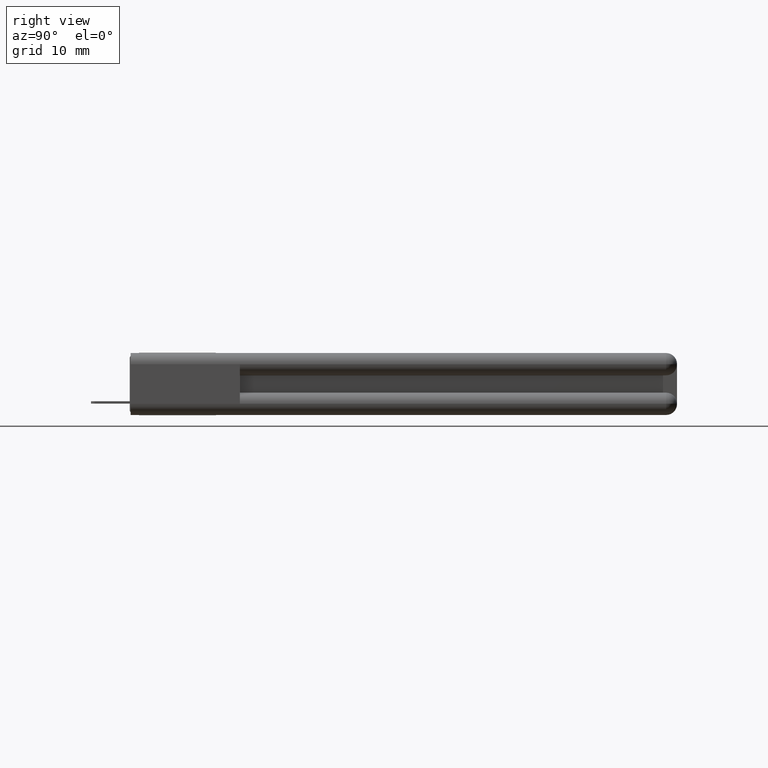
[diagram: clean part render]
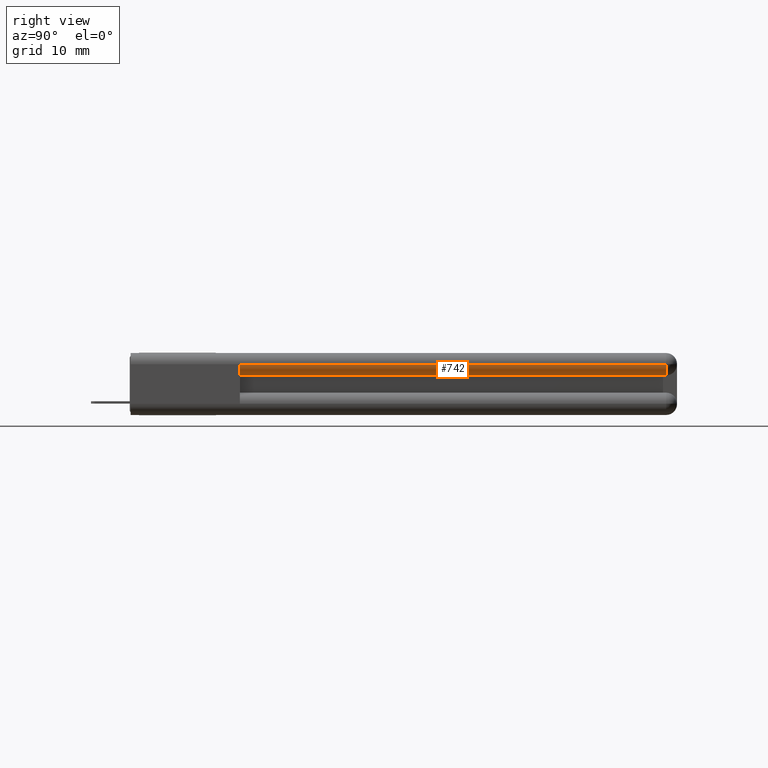
[diagram: same view with one face highlighted and labeled with its STEP entity id]
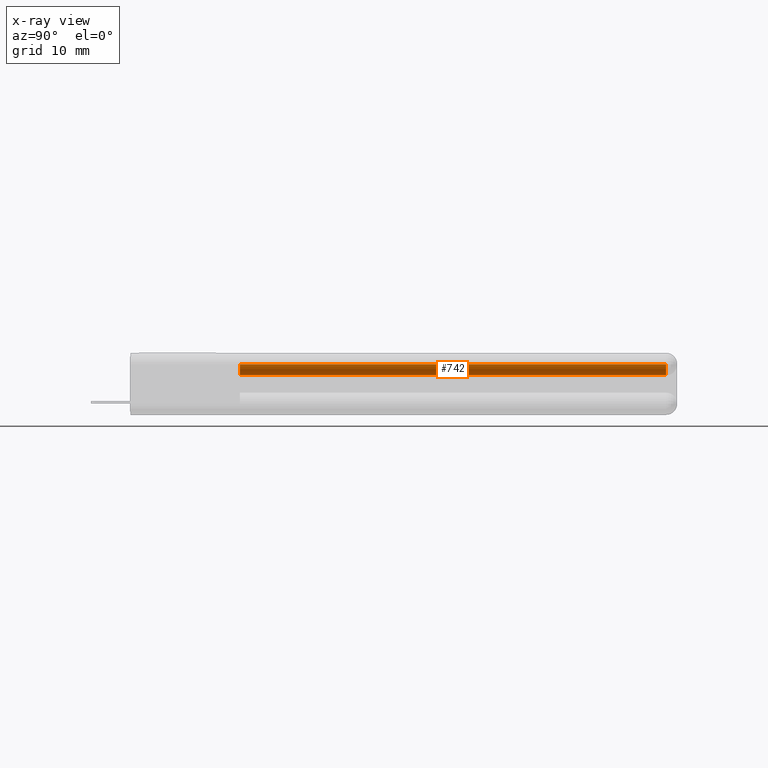
[diagram: x-ray of the same camera — body ghosted, the highlighted face saturated]
A machine part, right view. The second image highlights one B-rep face of the part: STEP entity #742.
The next image is the same camera in x-ray: the body ghosted, the highlighted face saturated — about 0% of this face is hidden behind the body in this view.
In plain terms, the highlighted cylindrical surface (edge-blend (fillet) strip) has radius 1.5621 mm, axis along (-0, 1, 0).
Its self-contained STEP definition (entity closure, byte-faithful):
#10 = DIRECTION ( 'NONE',  ( -7.120336040201873200E-016, -1.000000000000000000, 2.334284690065040000E-016 ) ) ;
#444 = CARTESIAN_POINT ( 'NONE',  ( 0.06150000000000015200, 0.6000000000000002000, -0.2790000000000015800 ) ) ;
#450 = EDGE_CURVE ( 'NONE', #1896, #2464, #8077, .T. ) ;
#473 = CARTESIAN_POINT ( 'NONE',  ( 0.06149796744608740400, 0.6000000000000002000, -0.2175000000000007500 ) ) ;
#695 = VECTOR ( 'NONE', #4792, 39.37007874015748100 ) ;
#742 = ADVANCED_FACE ( 'NONE', ( #7123 ), #12300, .T. ) ;
#1029 = CARTESIAN_POINT ( 'NONE',  ( 0.06150000000000370400, 2.940000000000007100, -0.2790000000000020200 ) ) ;
#1299 = VECTOR ( 'NONE', #1614, 39.37007874015748100 ) ;
#1614 = DIRECTION ( 'NONE',  ( -7.120336040201873200E-016, -1.000000000000000000, 2.334284690065040000E-016 ) ) ;
#1896 = VERTEX_POINT ( 'NONE', #8148 ) ;
#2159 = CIRCLE ( 'NONE', #9041, 0.06150000000000035300 ) ;
#2275 = CARTESIAN_POINT ( 'NONE',  ( 3.551402391763542400E-015, 2.940000000000007100, -0.2785000000000026300 ) ) ;
#2397 = DIRECTION ( 'NONE',  ( 7.120336040201873200E-016, 1.000000000000000000, -2.334284690065040000E-016 ) ) ;
#2433 = DIRECTION ( 'NONE',  ( 0.0000000000000000000, 0.0000000000000000000, -1.000000000000000000 ) ) ;
#2464 = VERTEX_POINT ( 'NONE', #2275 ) ;
#2529 = DIRECTION ( 'NONE',  ( 0.0000000000000000000, 0.0000000000000000000, 1.000000000000000000 ) ) ;
#4038 = EDGE_CURVE ( 'NONE', #6190, #2464, #4117, .T. ) ;
#4117 = LINE ( 'NONE', #12954, #695 ) ;
#4530 = ORIENTED_EDGE ( 'NONE', *, *, #9642, .F. ) ;
#4645 = CARTESIAN_POINT ( 'NONE',  ( 0.06149796744608740400, 0.6000000000000002000, -0.2175000000000007500 ) ) ;
#4792 = DIRECTION ( 'NONE',  ( 7.120336040201873200E-016, 1.000000000000000000, -2.334284690065040000E-016 ) ) ;
#5578 = VERTEX_POINT ( 'NONE', #473 ) ;
#5749 = EDGE_LOOP ( 'NONE', ( #6621, #8114, #6648, #4530 ) ) ;
#6190 = VERTEX_POINT ( 'NONE', #8802 ) ;
#6373 = AXIS2_PLACEMENT_3D ( 'NONE', #1029, #10, #10022 ) ;
#6465 = CARTESIAN_POINT ( 'NONE',  ( 0.06149796744608740400, 0.6000000000000002000, -0.2790000000000015800 ) ) ;
#6621 = ORIENTED_EDGE ( 'NONE', *, *, #450, .T. ) ;
#6648 = ORIENTED_EDGE ( 'NONE', *, *, #7016, .F. ) ;
#7016 = EDGE_CURVE ( 'NONE', #5578, #6190, #2159, .T. ) ;
#7123 = FACE_OUTER_BOUND ( 'NONE', #5749, .T. ) ;
#7324 = DIRECTION ( 'NONE',  ( -7.120336040201874200E-016, -1.000000000000000000, 2.334284690065040000E-016 ) ) ;
#8077 = CIRCLE ( 'NONE', #6373, 0.06150000000000035300 ) ;
#8114 = ORIENTED_EDGE ( 'NONE', *, *, #4038, .F. ) ;
#8148 = CARTESIAN_POINT ( 'NONE',  ( 0.06149796744609068600, 2.940000000000007100, -0.2175000000000015800 ) ) ;
#8554 = AXIS2_PLACEMENT_3D ( 'NONE', #444, #2397, #2529 ) ;
#8802 = CARTESIAN_POINT ( 'NONE',  ( 0.0000000000000000000, 0.5999999999999998700, -0.2785000000000021900 ) ) ;
#8965 = LINE ( 'NONE', #4645, #1299 ) ;
#9041 = AXIS2_PLACEMENT_3D ( 'NONE', #6465, #7324, #2433 ) ;
#9642 = EDGE_CURVE ( 'NONE', #1896, #5578, #8965, .T. ) ;
#10022 = DIRECTION ( 'NONE',  ( 0.0000000000000000000, 0.0000000000000000000, 1.000000000000000000 ) ) ;
#12300 = CYLINDRICAL_SURFACE ( 'NONE', #8554, 0.06150000000000035300 ) ;
#12954 = CARTESIAN_POINT ( 'NONE',  ( 0.0000000000000000000, 6.936332796413168700E-017, -0.2785000000000017500 ) ) ;